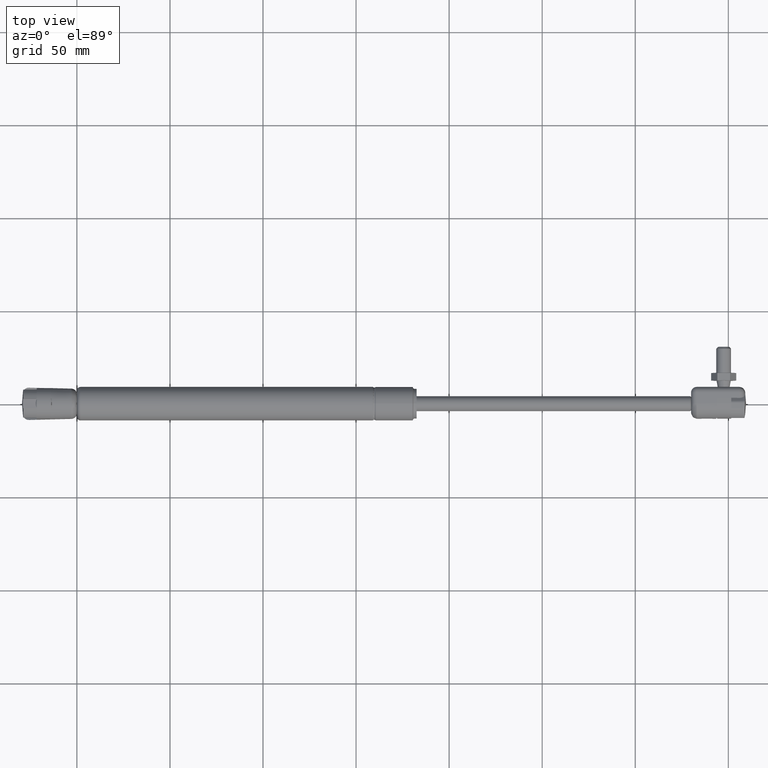
[diagram: clean part render]
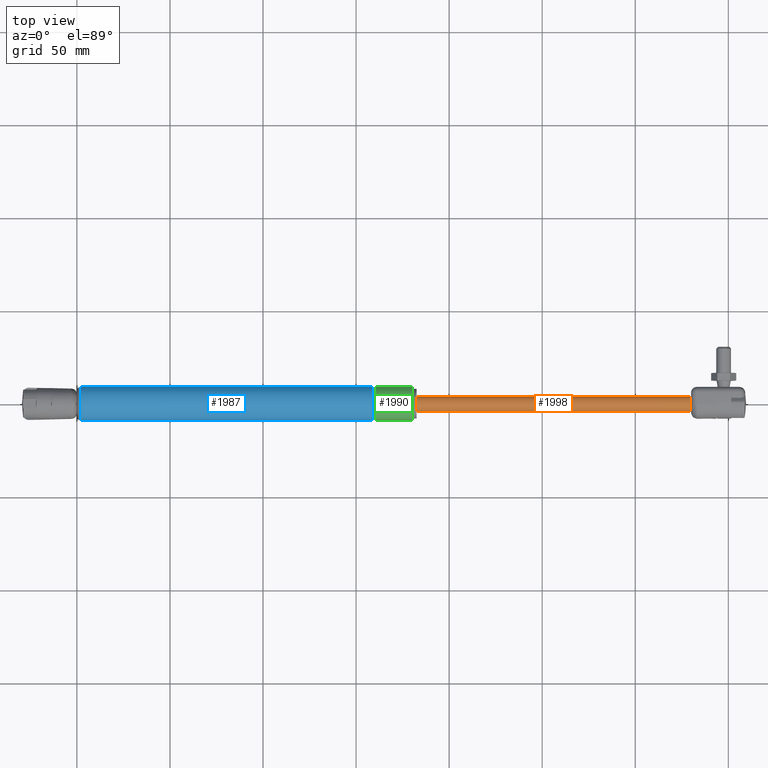
[diagram: same view with three faces highlighted in distinct colors, each labeled with its STEP entity id]
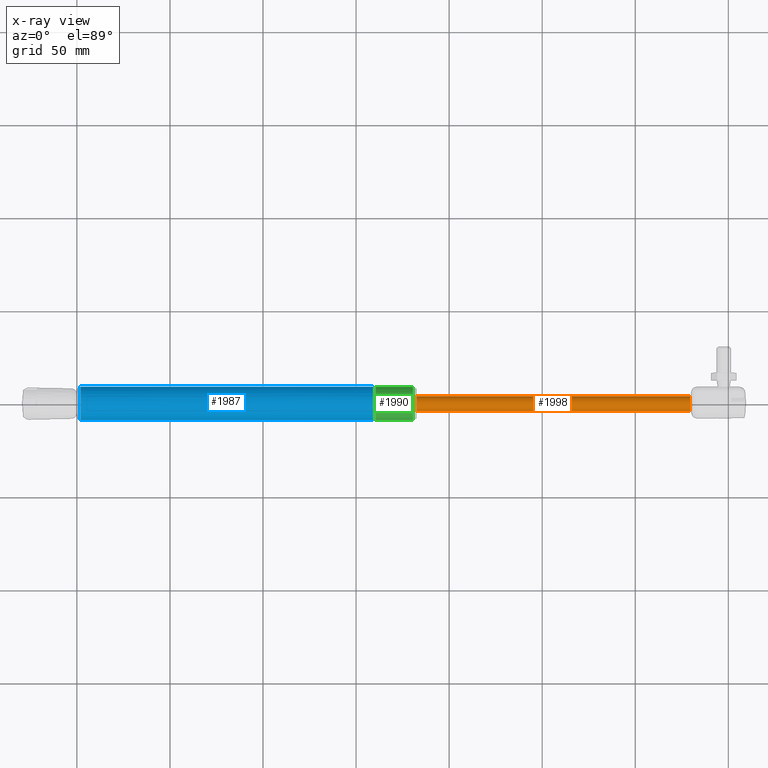
[diagram: x-ray of the same camera — body ghosted, the three highlighted faces saturated]
A machine part, top view with three faces highlighted in distinct colors.
The next image is the same camera in x-ray (body ghosted, the three faces saturated) — at least one of them is partly hidden behind the body in this view.
Their STEP definitions:

[orange] entity #1998 — the highlighted cylindrical surface (bore or boss wall) has radius 4 mm, axis along (1, -0, 0).
#472=CYLINDRICAL_SURFACE('',#2144,4.);
#503=FACE_BOUND('',#672,.T.);
#536=FACE_OUTER_BOUND('',#671,.T.);
#671=EDGE_LOOP('',(#1426));
#672=EDGE_LOOP('',(#1427));
#810=CIRCLE('',#2140,4.);
#813=CIRCLE('',#2145,4.);
#929=VERTEX_POINT('',#3026);
#932=VERTEX_POINT('',#3034);
#1122=EDGE_CURVE('',#929,#929,#810,.T.);
#1125=EDGE_CURVE('',#932,#932,#813,.T.);
#1426=ORIENTED_EDGE('',*,*,#1125,.T.);
#1427=ORIENTED_EDGE('',*,*,#1122,.F.);
#1998=ADVANCED_FACE('',(#536,#503),#472,.T.);
#2140=AXIS2_PLACEMENT_3D('',#3027,#2408,#2409);
#2144=AXIS2_PLACEMENT_3D('',#3033,#2416,#2417);
#2145=AXIS2_PLACEMENT_3D('',#3035,#2418,#2419);
#2408=DIRECTION('center_axis',(1.,-5.34820952692211E-32,0.));
#2409=DIRECTION('ref_axis',(0.,-1.,0.));
#2416=DIRECTION('center_axis',(1.,-5.34820952692211E-32,0.));
#2417=DIRECTION('ref_axis',(0.,1.,0.));
#2418=DIRECTION('center_axis',(1.,-5.34820952692211E-32,0.));
#2419=DIRECTION('ref_axis',(0.,0.,-1.));
#3026=CARTESIAN_POINT('',(147.,4.,4.89858719658941E-16));
#3027=CARTESIAN_POINT('Origin',(147.,-7.86186800457551E-30,0.));
#3033=CARTESIAN_POINT('Origin',(73.75,-3.94430452610506E-30,0.));
#3034=CARTESIAN_POINT('',(0.,4.,0.));
#3035=CARTESIAN_POINT('Origin',(0.,0.,0.));

[blue] entity #1987 — the highlighted cylindrical surface (bore or boss wall) has radius 9 mm, axis along (1, 0, 0).
#468=CYLINDRICAL_SURFACE('',#2123,9.);
#494=FACE_BOUND('',#652,.T.);
#525=FACE_OUTER_BOUND('',#651,.T.);
#651=EDGE_LOOP('',(#1406));
#652=EDGE_LOOP('',(#1407));
#802=CIRCLE('',#2121,9.);
#804=CIRCLE('',#2124,9.);
#921=VERTEX_POINT('',#2999);
#923=VERTEX_POINT('',#3004);
#1114=EDGE_CURVE('',#921,#921,#802,.T.);
#1116=EDGE_CURVE('',#923,#923,#804,.T.);
#1406=ORIENTED_EDGE('',*,*,#1116,.F.);
#1407=ORIENTED_EDGE('',*,*,#1114,.T.);
#1987=ADVANCED_FACE('',(#525,#494),#468,.T.);
#2121=AXIS2_PLACEMENT_3D('',#3000,#2370,#2371);
#2123=AXIS2_PLACEMENT_3D('',#3003,#2374,#2375);
#2124=AXIS2_PLACEMENT_3D('',#3005,#2376,#2377);
#2370=DIRECTION('center_axis',(-1.,0.,0.));
#2371=DIRECTION('ref_axis',(0.,1.,0.));
#2374=DIRECTION('center_axis',(1.,0.,0.));
#2375=DIRECTION('ref_axis',(0.,1.,0.));
#2376=DIRECTION('center_axis',(-1.,0.,0.));
#2377=DIRECTION('ref_axis',(0.,-1.,1.83697019872103E-16));
#2999=CARTESIAN_POINT('',(159.,0.,9.));
#3000=CARTESIAN_POINT('Origin',(159.,0.,0.));
#3003=CARTESIAN_POINT('Origin',(91.25,0.,0.));
#3004=CARTESIAN_POINT('',(1.99999999999999,9.,-2.75545529808154E-15));
#3005=CARTESIAN_POINT('Origin',(1.99999999999999,0.,0.));

[green] entity #1990 — the highlighted cylindrical surface (bore or boss wall) has radius 9 mm, axis along (1, 0, 0).
#469=CYLINDRICAL_SURFACE('',#2129,9.);
#497=FACE_BOUND('',#658,.T.);
#528=FACE_OUTER_BOUND('',#657,.T.);
#657=EDGE_LOOP('',(#1412));
#658=EDGE_LOOP('',(#1413));
#799=CIRCLE('',#2116,9.);
#803=CIRCLE('',#2122,9.);
#918=VERTEX_POINT('',#2991);
#922=VERTEX_POINT('',#3001);
#1111=EDGE_CURVE('',#918,#918,#799,.T.);
#1115=EDGE_CURVE('',#922,#922,#803,.T.);
#1412=ORIENTED_EDGE('',*,*,#1115,.T.);
#1413=ORIENTED_EDGE('',*,*,#1111,.T.);
#1990=ADVANCED_FACE('',(#528,#497),#469,.T.);
#2116=AXIS2_PLACEMENT_3D('',#2992,#2360,#2361);
#2122=AXIS2_PLACEMENT_3D('',#3002,#2372,#2373);
#2129=AXIS2_PLACEMENT_3D('',#3012,#2386,#2387);
#2360=DIRECTION('center_axis',(-1.,0.,0.));
#2361=DIRECTION('ref_axis',(0.,1.,0.));
#2372=DIRECTION('center_axis',(1.,0.,0.));
#2373=DIRECTION('ref_axis',(0.,1.,0.));
#2386=DIRECTION('center_axis',(1.,0.,0.));
#2387=DIRECTION('ref_axis',(0.,1.,0.));
#2991=CARTESIAN_POINT('',(180.5,0.,9.));
#2992=CARTESIAN_POINT('Origin',(180.5,0.,0.));
#3001=CARTESIAN_POINT('',(160.5,0.,9.));
#3002=CARTESIAN_POINT('Origin',(160.5,0.,0.));
#3012=CARTESIAN_POINT('Origin',(91.25,0.,0.));